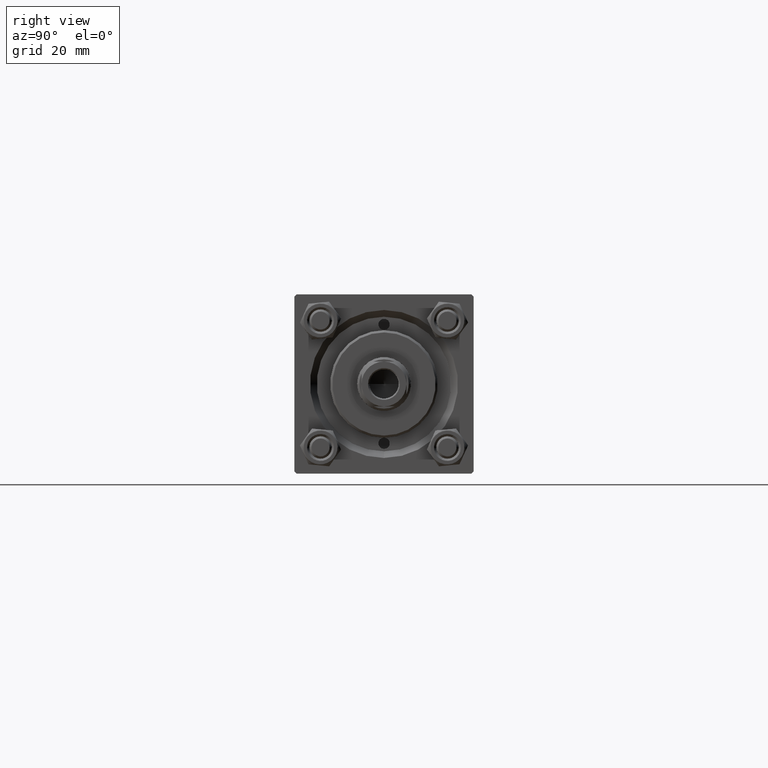
[diagram: clean part render]
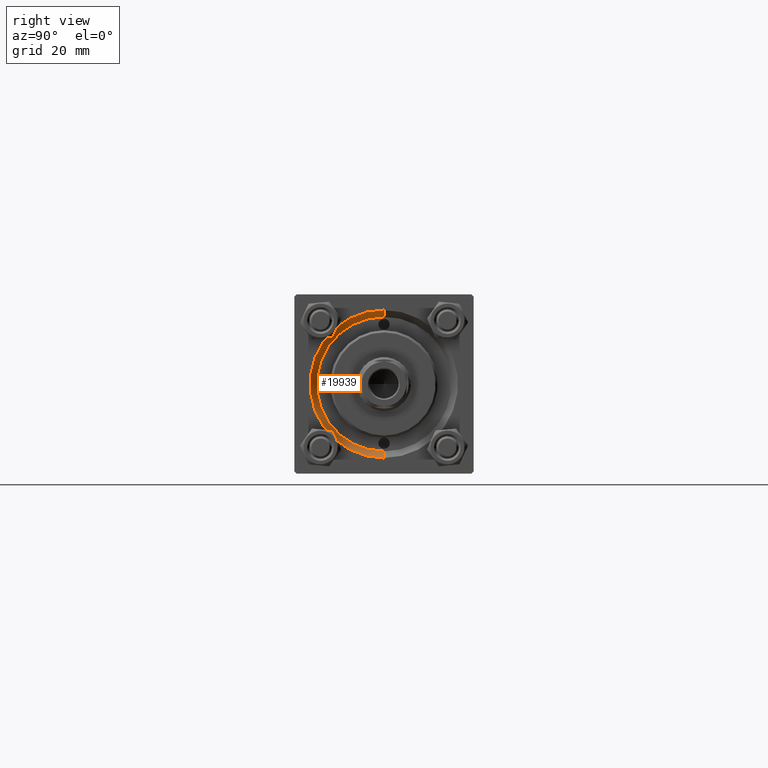
[diagram: same view with one face highlighted and labeled with its STEP entity id]
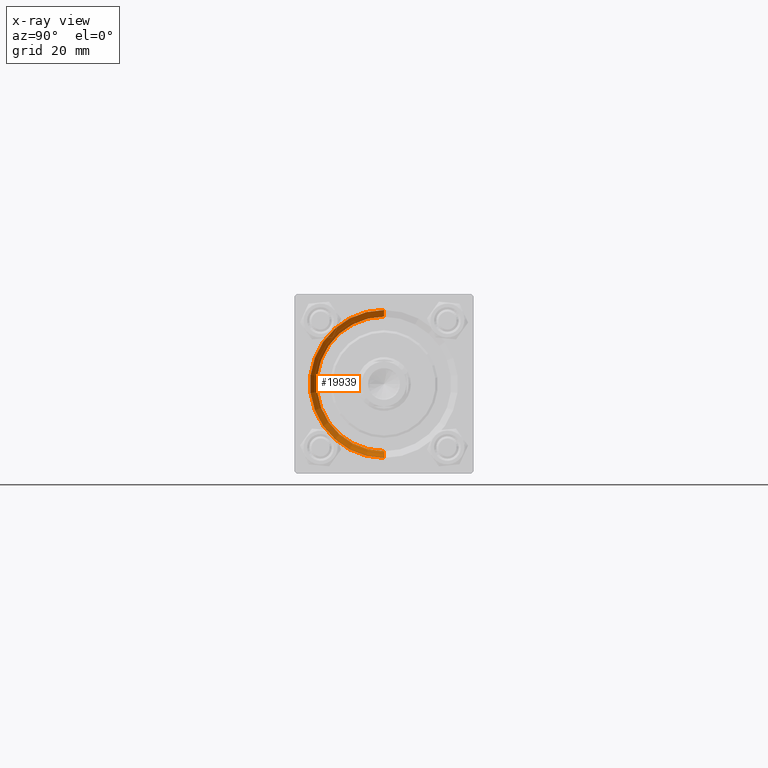
[diagram: x-ray of the same camera — body ghosted, the highlighted face saturated]
A machine part, right view. The second image highlights one B-rep face of the part: STEP entity #19939.
The next image is the same camera in x-ray: the body ghosted, the highlighted face saturated — about 0% of this face is hidden behind the body in this view.
In plain terms, the highlighted conical surface has half-angle 45 deg.
Its self-contained STEP definition (entity closure, byte-faithful):
#3649 = VERTEX_POINT ( 'NONE', #45909 ) ;
#3946 = AXIS2_PLACEMENT_3D ( 'NONE', #32360, #43957, #8887 ) ;
#5247 = EDGE_CURVE ( 'NONE', #18445, #49478, #29656, .T. ) ;
#7490 = DIRECTION ( 'NONE',  ( -1.000000000000000000, -0.000000000000000000, -0.000000000000000000 ) ) ;
#8887 = DIRECTION ( 'NONE',  ( 0.000000000000000000, 0.000000000000000000, -1.000000000000000000 ) ) ;
#10355 = CARTESIAN_POINT ( 'NONE',  ( 117.5000000000000000, 0.000000000000000000, -15.00000000000000000 ) ) ;
#14152 = DIRECTION ( 'NONE',  ( 0.7071067811865474617, 0.000000000000000000, -0.7071067811865474617 ) ) ;
#14558 = ORIENTED_EDGE ( 'NONE', *, *, #22148, .F. ) ;
#16282 = VECTOR ( 'NONE', #48540, 1000.000000000000114 ) ;
#16922 = DIRECTION ( 'NONE',  ( 1.000000000000000000, 0.000000000000000000, 0.000000000000000000 ) ) ;
#18445 = VERTEX_POINT ( 'NONE', #44749 ) ;
#19760 = ORIENTED_EDGE ( 'NONE', *, *, #41674, .T. ) ;
#19939 = ADVANCED_FACE ( 'NONE', ( #20501 ), #43461, .F. ) ;
#20501 = FACE_OUTER_BOUND ( 'NONE', #30812, .T. ) ;
#21492 = VERTEX_POINT ( 'NONE', #44402 ) ;
#22148 = EDGE_CURVE ( 'NONE', #49478, #3649, #36618, .T. ) ;
#23735 = CIRCLE ( 'NONE', #41477, 16.50000000000001421 ) ;
#24538 = ORIENTED_EDGE ( 'NONE', *, *, #5247, .F. ) ;
#28955 = CARTESIAN_POINT ( 'NONE',  ( 117.5000000000000000, 0.000000000000000000, -15.00000000000000000 ) ) ;
#29656 = CIRCLE ( 'NONE', #47418, 15.00000000000000000 ) ;
#30812 = EDGE_LOOP ( 'NONE', ( #24538, #19760, #42232, #14558 ) ) ;
#32329 = DIRECTION ( 'NONE',  ( 0.000000000000000000, 0.000000000000000000, 1.000000000000000000 ) ) ;
#32360 = CARTESIAN_POINT ( 'NONE',  ( 117.5000000000000000, 0.000000000000000000, 0.000000000000000000 ) ) ;
#33153 = LINE ( 'NONE', #36675, #16282 ) ;
#33881 = VECTOR ( 'NONE', #14152, 1000.000000000000114 ) ;
#36102 = CARTESIAN_POINT ( 'NONE',  ( 117.5000000000000000, 0.000000000000000000, 0.000000000000000000 ) ) ;
#36618 = LINE ( 'NONE', #10355, #33881 ) ;
#36675 = CARTESIAN_POINT ( 'NONE',  ( 117.5000000000000000, 1.836970198721029589E-15, 15.00000000000000000 ) ) ;
#37501 = EDGE_CURVE ( 'NONE', #3649, #21492, #23735, .T. ) ;
#41477 = AXIS2_PLACEMENT_3D ( 'NONE', #48201, #7490, #42072 ) ;
#41674 = EDGE_CURVE ( 'NONE', #18445, #21492, #33153, .T. ) ;
#42072 = DIRECTION ( 'NONE',  ( 0.000000000000000000, 0.000000000000000000, 1.000000000000000000 ) ) ;
#42232 = ORIENTED_EDGE ( 'NONE', *, *, #37501, .F. ) ;
#43461 = CONICAL_SURFACE ( 'NONE', #3946, 15.00000000000000000, 0.7853981633974482790 ) ;
#43957 = DIRECTION ( 'NONE',  ( 1.000000000000000000, 0.000000000000000000, 0.000000000000000000 ) ) ;
#44402 = CARTESIAN_POINT ( 'NONE',  ( 119.0000000000000142, 2.020667218593134678E-15, 16.50000000000001421 ) ) ;
#44749 = CARTESIAN_POINT ( 'NONE',  ( 117.5000000000000000, 1.836970198721029589E-15, 15.00000000000000000 ) ) ;
#45909 = CARTESIAN_POINT ( 'NONE',  ( 119.0000000000000142, 0.000000000000000000, -16.50000000000001421 ) ) ;
#47418 = AXIS2_PLACEMENT_3D ( 'NONE', #36102, #16922, #32329 ) ;
#48201 = CARTESIAN_POINT ( 'NONE',  ( 119.0000000000000142, 0.000000000000000000, 0.000000000000000000 ) ) ;
#48540 = DIRECTION ( 'NONE',  ( 0.7071067811865474617, 8.659560562354932858E-17, 0.7071067811865474617 ) ) ;
#49478 = VERTEX_POINT ( 'NONE', #28955 ) ;